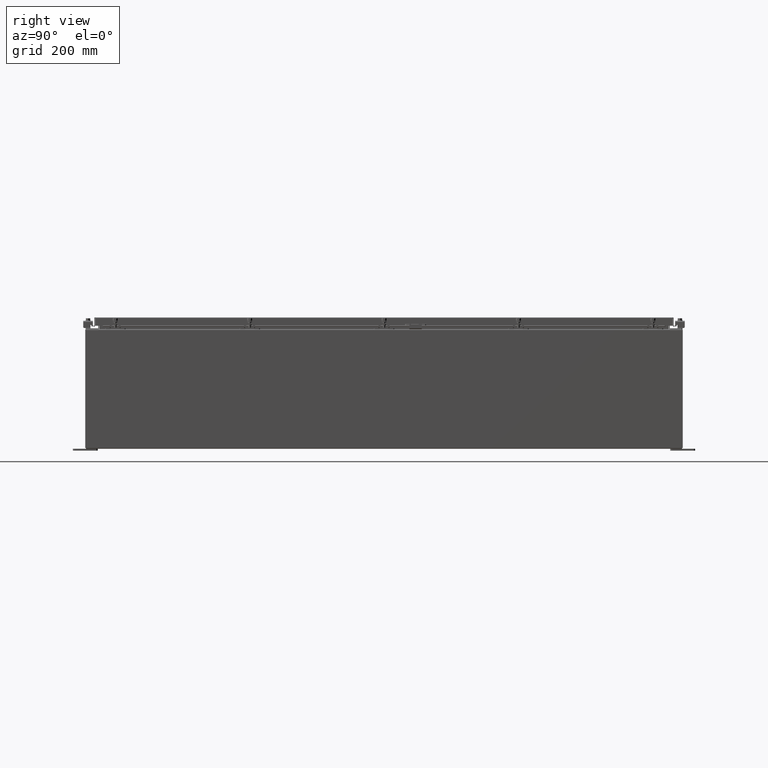
[diagram: clean part render]
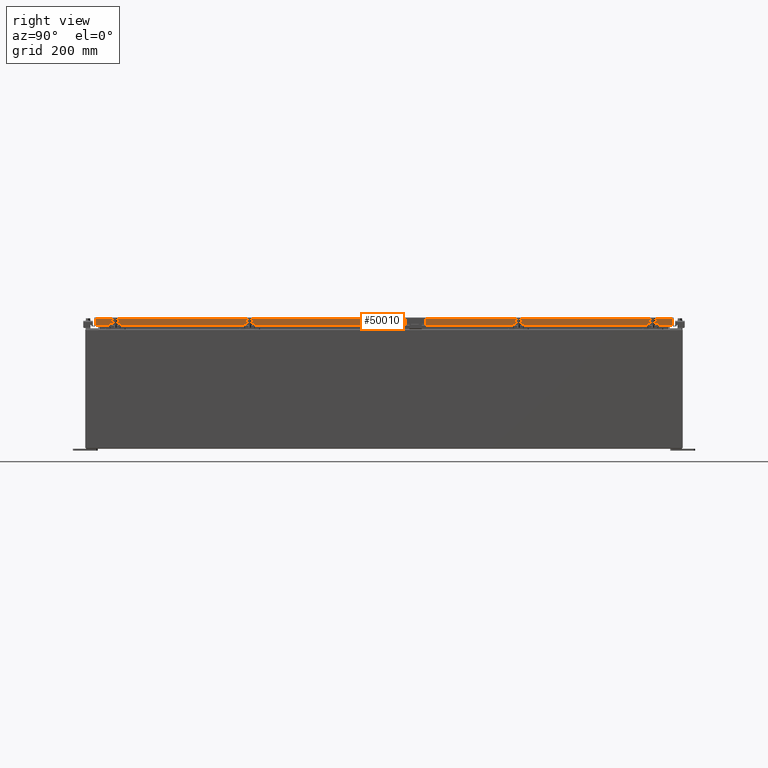
[diagram: same view with one face highlighted and labeled with its STEP entity id]
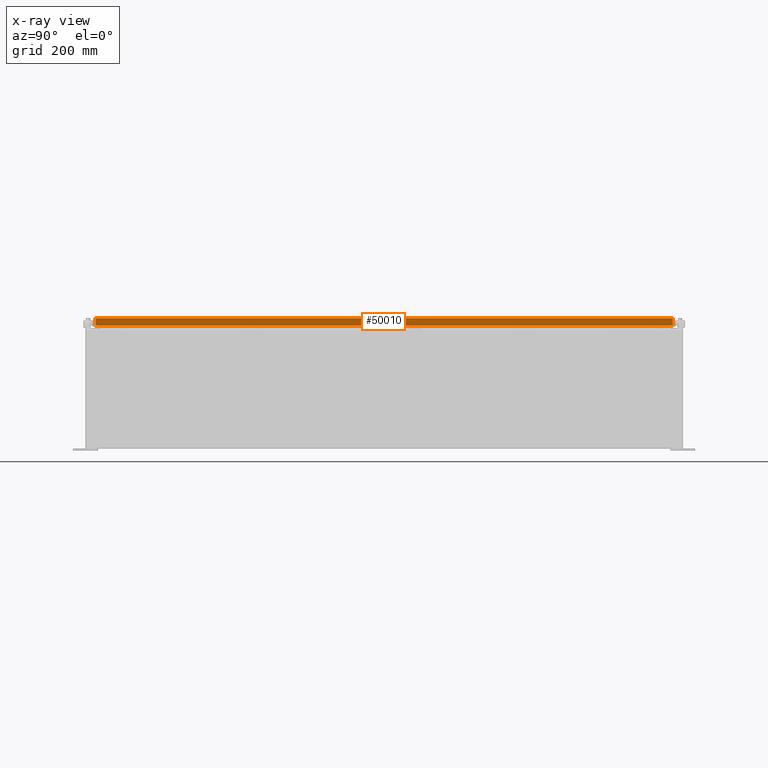
[diagram: x-ray of the same camera — body ghosted, the highlighted face saturated]
A machine part, right view. The second image highlights one B-rep face of the part: STEP entity #50010.
The next image is the same camera in x-ray: the body ghosted, the highlighted face saturated — about 0% of this face is hidden behind the body in this view.
In plain terms, the highlighted planar face has unit normal (1, 0, 0).
Its self-contained STEP definition (entity closure, byte-faithful):
#227 = VECTOR ( 'NONE', #46725, 39.37007874015748100 ) ;
#3124 = PLANE ( 'NONE',  #17641 ) ;
#3131 = VERTEX_POINT ( 'NONE', #32016 ) ;
#3535 = LINE ( 'NONE', #8952, #14947 ) ;
#8006 = DIRECTION ( 'NONE',  ( 2.818880942772360100E-015, 0.0000000000000000000, -1.000000000000000000 ) ) ;
#8482 = EDGE_LOOP ( 'NONE', ( #45352, #39809, #53171, #20584, #38563, #20010 ) ) ;
#8952 = CARTESIAN_POINT ( 'NONE',  ( 17.07800000000000300, -29.00515786437626500, -0.07469999999999978000 ) ) ;
#9700 = CARTESIAN_POINT ( 'NONE',  ( 17.07800000000000300, 29.00515786437626500, -0.08770000000000007000 ) ) ;
#13121 = LINE ( 'NONE', #41876, #227 ) ;
#13776 = DIRECTION ( 'NONE',  ( 0.0000000000000000000, -1.000000000000000000, 0.0000000000000000000 ) ) ;
#14708 = EDGE_CURVE ( 'NONE', #3131, #43997, #54552, .T. ) ;
#14947 = VECTOR ( 'NONE', #38093, 39.37007874015748100 ) ;
#15018 = VERTEX_POINT ( 'NONE', #49432 ) ;
#15778 = VECTOR ( 'NONE', #56540, 39.37007874015748100 ) ;
#16005 = EDGE_CURVE ( 'NONE', #43997, #45740, #3535, .T. ) ;
#17138 = VECTOR ( 'NONE', #25534, 39.37007874015748100 ) ;
#17313 = CARTESIAN_POINT ( 'NONE',  ( 17.07799999999999600, 28.25515786437626200, -0.8500000000000016400 ) ) ;
#17641 = AXIS2_PLACEMENT_3D ( 'NONE', #46665, #37139, #8006 ) ;
#20010 = ORIENTED_EDGE ( 'NONE', *, *, #40016, .T. ) ;
#20584 = ORIENTED_EDGE ( 'NONE', *, *, #60698, .F. ) ;
#21654 = VERTEX_POINT ( 'NONE', #9700 ) ;
#25534 = DIRECTION ( 'NONE',  ( -2.818880942772360100E-015, -6.982962677686265900E-015, 1.000000000000000000 ) ) ;
#27351 = CARTESIAN_POINT ( 'NONE',  ( 17.07799999999999600, 28.25515786437627600, -0.8500000000000016400 ) ) ;
#32016 = CARTESIAN_POINT ( 'NONE',  ( 17.07799999999999600, -28.25515786437625800, -0.8500000000000016400 ) ) ;
#37139 = DIRECTION ( 'NONE',  ( 1.000000000000000000, 0.0000000000000000000, 2.818880942772360100E-015 ) ) ;
#38093 = DIRECTION ( 'NONE',  ( -2.818880942772360100E-015, -6.982962677686265900E-015, 1.000000000000000000 ) ) ;
#38563 = ORIENTED_EDGE ( 'NONE', *, *, #49204, .T. ) ;
#38738 = VECTOR ( 'NONE', #13776, 39.37007874015748100 ) ;
#39809 = ORIENTED_EDGE ( 'NONE', *, *, #14708, .F. ) ;
#40016 = EDGE_CURVE ( 'NONE', #21654, #45740, #40734, .T. ) ;
#40734 = LINE ( 'NONE', #49773, #52058 ) ;
#41459 = CARTESIAN_POINT ( 'NONE',  ( 17.07800000000000700, -29.09400000000000100, -0.8499999999999996400 ) ) ;
#41876 = CARTESIAN_POINT ( 'NONE',  ( 17.07800000000000700, -29.09400000000000100, -0.8499999999999996400 ) ) ;
#43997 = VERTEX_POINT ( 'NONE', #56358 ) ;
#44893 = DIRECTION ( 'NONE',  ( 0.0000000000000000000, -1.000000000000000000, 0.0000000000000000000 ) ) ;
#45352 = ORIENTED_EDGE ( 'NONE', *, *, #16005, .F. ) ;
#45740 = VERTEX_POINT ( 'NONE', #52486 ) ;
#46665 = CARTESIAN_POINT ( 'NONE',  ( 17.07800000000000300, 0.0000000000000000000, 4.840166239667796000E-014 ) ) ;
#46725 = DIRECTION ( 'NONE',  ( 0.0000000000000000000, -1.000000000000000000, 0.0000000000000000000 ) ) ;
#49204 = EDGE_CURVE ( 'NONE', #15018, #21654, #54388, .T. ) ;
#49432 = CARTESIAN_POINT ( 'NONE',  ( 17.07800000000000700, 29.00515786437627200, -0.8499999999999996400 ) ) ;
#49773 = CARTESIAN_POINT ( 'NONE',  ( 17.07800000000000300, 0.0000000000000000000, -0.08770000000000007000 ) ) ;
#50010 = ADVANCED_FACE ( 'NONE', ( #56870 ), #3124, .T. ) ;
#52058 = VECTOR ( 'NONE', #44893, 39.37007874015748100 ) ;
#52486 = CARTESIAN_POINT ( 'NONE',  ( 17.07800000000000300, -29.00515786437626500, -0.08770000000000007000 ) ) ;
#53119 = LINE ( 'NONE', #27351, #38738 ) ;
#53171 = ORIENTED_EDGE ( 'NONE', *, *, #55214, .F. ) ;
#54388 = LINE ( 'NONE', #59587, #17138 ) ;
#54552 = LINE ( 'NONE', #41459, #15778 ) ;
#55214 = EDGE_CURVE ( 'NONE', #59177, #3131, #53119, .T. ) ;
#56358 = CARTESIAN_POINT ( 'NONE',  ( 17.07800000000000700, -29.00515786437626200, -0.8499999999999996400 ) ) ;
#56540 = DIRECTION ( 'NONE',  ( 0.0000000000000000000, -1.000000000000000000, 0.0000000000000000000 ) ) ;
#56870 = FACE_OUTER_BOUND ( 'NONE', #8482, .T. ) ;
#59177 = VERTEX_POINT ( 'NONE', #17313 ) ;
#59587 = CARTESIAN_POINT ( 'NONE',  ( 17.07800000000000300, 29.00515786437626500, 2.509435972240157400E-013 ) ) ;
#60698 = EDGE_CURVE ( 'NONE', #15018, #59177, #13121, .T. ) ;